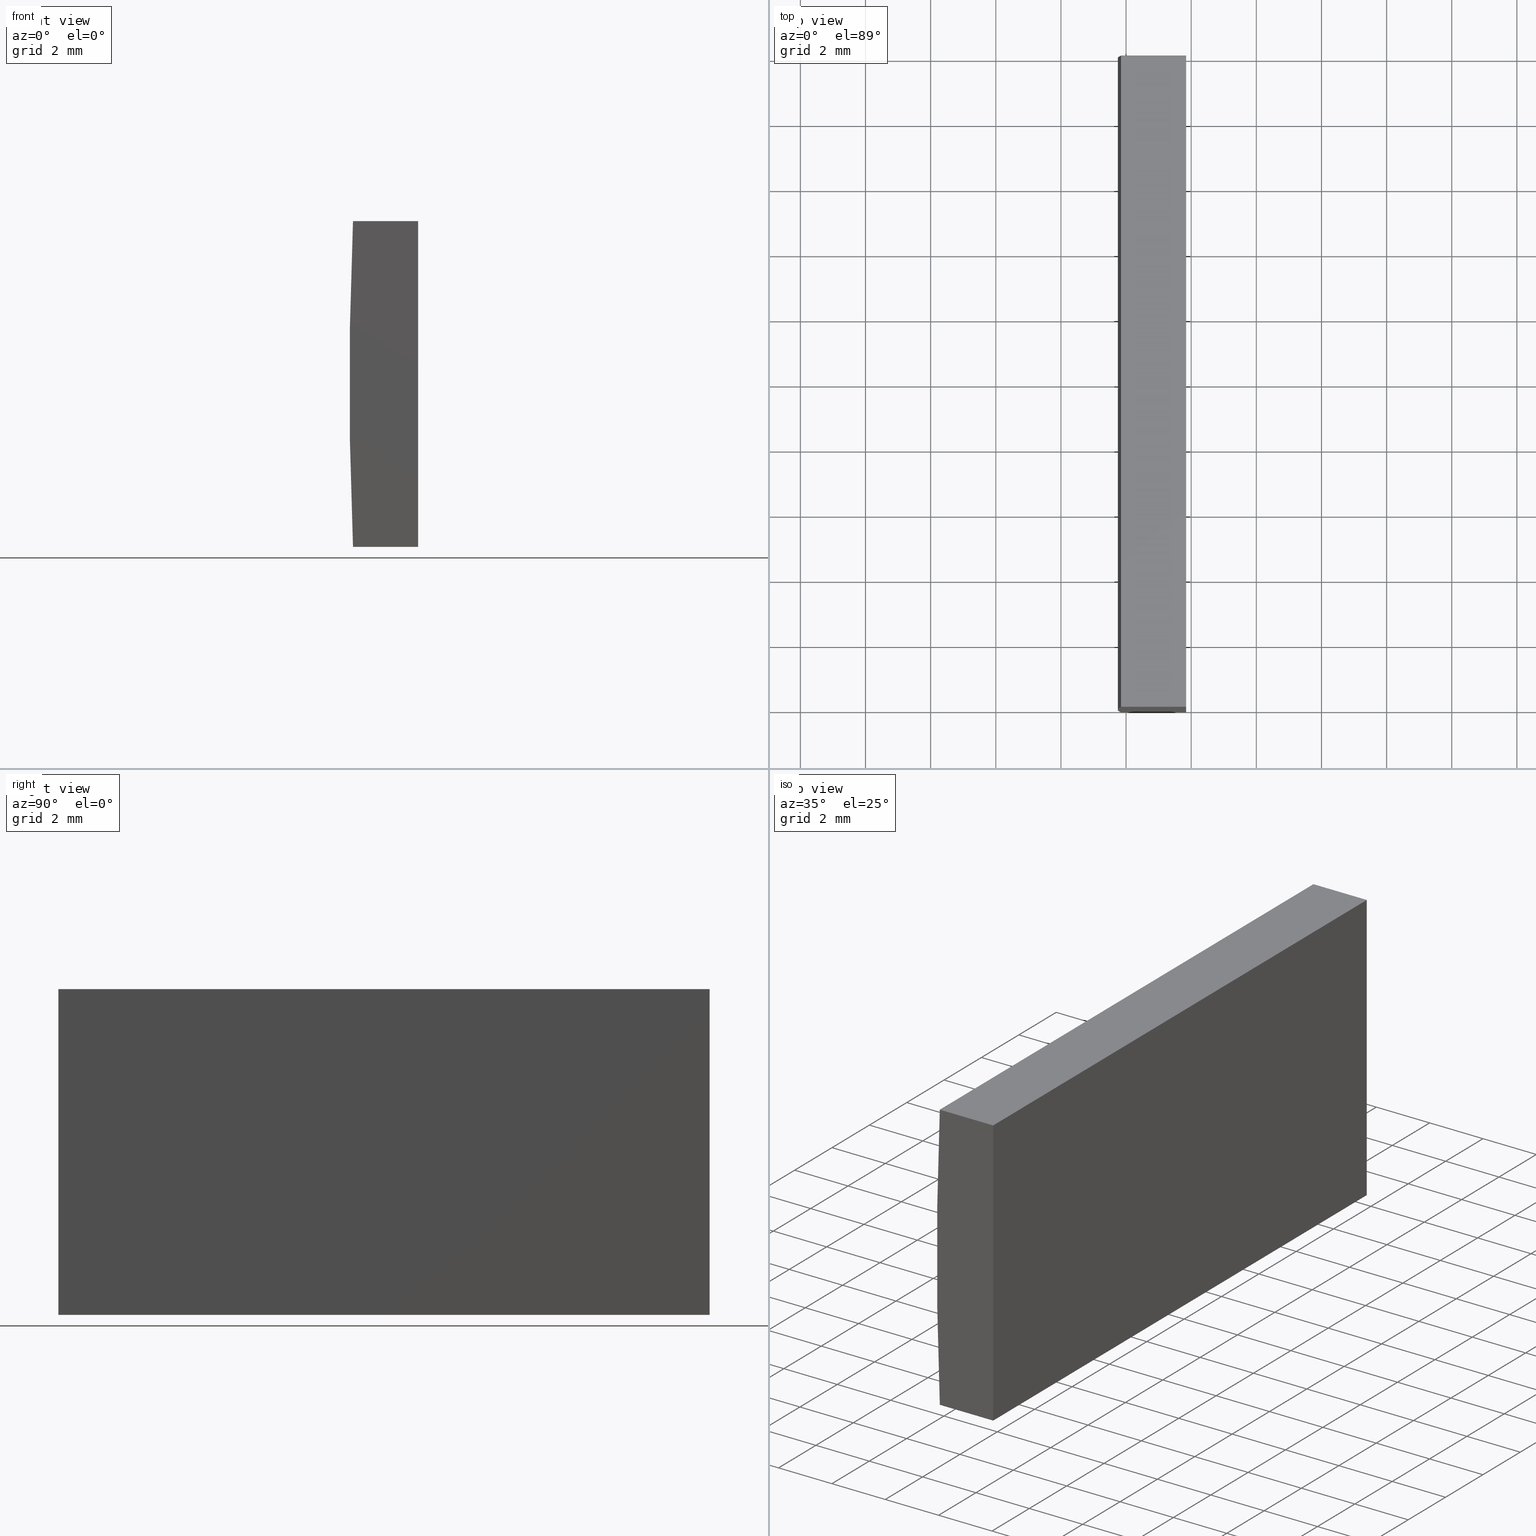
[diagram: canonical four-view strip — front | top / right | iso, engineering-drawing reading convention]
A machine part, canonical four-view strip (front | top / right | iso — engineering-drawing reading convention). The complete STEP part file that produces these views, byte-faithful:
ISO-10303-21;
HEADER;
FILE_DESCRIPTION (( 'STEP AP214' ),
    '1' );
FILE_NAME ('155288.STEP',
    '2019-06-26T02:52:55',
    ( 'user' ),
    ( '΢���й�' ),
    'SwSTEP 2.0',
    'SolidWorks 2016',
    '' );
FILE_SCHEMA (( 'AUTOMOTIVE_DESIGN' ));
ENDSEC;

DATA;
#1 = SURFACE_SIDE_STYLE ('',( #128 ) ) ;
#2 = EDGE_LOOP ( 'NONE', ( #24, #21, #84, #113 ) ) ;
#3 = PRESENTATION_STYLE_ASSIGNMENT (( #148 ) ) ;
#4 = PLANE ( 'NONE',  #101 ) ;
#5 = VECTOR ( 'NONE', #11, 1000.000000000000000 ) ;
#6 = VERTEX_POINT ( 'NONE', #81 ) ;
#7 = EDGE_LOOP ( 'NONE', ( #194, #62, #94, #151 ) ) ;
#8 = VECTOR ( 'NONE', #71, 1000.000000000000000 ) ;
#9 = DIRECTION ( 'NONE',  ( -1.000000000000000000, 0.0000000000000000000, -0.0000000000000000000 ) ) ;
#10 = AXIS2_PLACEMENT_3D ( 'NONE', #116, #134, #9 ) ;
#11 = DIRECTION ( 'NONE',  ( -1.000000000000000000, -0.0000000000000000000, 8.669750418240285800E-016 ) ) ;
#12 = LINE ( 'NONE', #72, #8 ) ;
#13 = VECTOR ( 'NONE', #162, 1000.000000000000000 ) ;
#14 = UNCERTAINTY_MEASURE_WITH_UNIT (LENGTH_MEASURE( 1.000000000000000100E-005 ), #52, 'distance_accuracy_value', 'NONE');
#15 = DIRECTION ( 'NONE',  ( -0.0000000000000000000, -1.000000000000000000, -0.0000000000000000000 ) ) ;
#16 = VERTEX_POINT ( 'NONE', #28 ) ;
#17 = PLANE ( 'NONE',  #105 ) ;
#18 =( NAMED_UNIT ( * ) PLANE_ANGLE_UNIT ( ) SI_UNIT ( $, .RADIAN. ) );
#19 = EDGE_LOOP ( 'NONE', ( #58, #125, #186, #82 ) ) ;
#20 = EDGE_CURVE ( 'NONE', #91, #159, #85, .T. ) ;
#21 = ORIENTED_EDGE ( 'NONE', *, *, #198, .F. ) ;
#22 = COLOUR_RGB ( '',1.000000000000000000, 1.000000000000000000, 1.000000000000000000 ) ;
#23 = PRODUCT_DEFINITION_SHAPE ( 'NONE', 'NONE',  #51 ) ;
#24 = ORIENTED_EDGE ( 'NONE', *, *, #20, .T. ) ;
#25 = DIRECTION ( 'NONE',  ( -0.0000000000000000000, -1.000000000000000000, -0.0000000000000000000 ) ) ;
#26 = LINE ( 'NONE', #46, #34 ) ;
#27 = AXIS2_PLACEMENT_3D ( 'NONE', #40, #190, #68 ) ;
#28 = CARTESIAN_POINT ( 'NONE',  ( -110.1556877235027200, 0.0000000000000000000, -5.000000000000000000 ) ) ;
#29 = CARTESIAN_POINT ( 'NONE',  ( 4.355204334851265500, 0.0000000000000000000, 4.286263797015675000E-017 ) ) ;
#30 = ORIENTED_EDGE ( 'NONE', *, *, #39, .F. ) ;
#31 = PRESENTATION_STYLE_ASSIGNMENT (( #170 ) ) ;
#32 = EDGE_LOOP ( 'NONE', ( #147, #30, #103, #203 ) ) ;
#33 = MANIFOLD_SOLID_BREP ( '͹̨-����1', #77 ) ;
#34 = VECTOR ( 'NONE', #44, 1000.000000000000000 ) ;
#35 = STYLED_ITEM ( 'NONE', ( #31 ), #118 ) ;
#36 = COLOUR_RGB ( '',1.000000000000000000, 1.000000000000000000, 1.000000000000000000 ) ;
#37 = EDGE_LOOP ( 'NONE', ( #156, #142, #107, #122 ) ) ;
#38 = CARTESIAN_POINT ( 'NONE',  ( -110.1556877235027200, 20.00000000000000000, -5.000000000000000000 ) ) ;
#39 = EDGE_CURVE ( 'NONE', #6, #45, #65, .T. ) ;
#40 = CARTESIAN_POINT ( 'NONE',  ( 4.355204334851265500, 0.0000000000000000000, 4.286263797015675000E-017 ) ) ;
#41 = CARTESIAN_POINT ( 'NONE',  ( -110.1556877235027200, 20.00000000000000000, 5.000000000000000000 ) ) ;
#42 = CIRCLE ( 'NONE', #27, 114.6199999999999900 ) ;
#43 = EDGE_CURVE ( 'NONE', #181, #16, #140, .T. ) ;
#44 = DIRECTION ( 'NONE',  ( -0.0000000000000000000, -0.0000000000000000000, -1.000000000000000000 ) ) ;
#45 = VERTEX_POINT ( 'NONE', #197 ) ;
#46 = CARTESIAN_POINT ( 'NONE',  ( -108.1547956651487400, 20.00000000000000000, -5.000000000000001800 ) ) ;
#47 = LINE ( 'NONE', #49, #75 ) ;
#48 = FACE_OUTER_BOUND ( 'NONE', #2, .T. ) ;
#49 = CARTESIAN_POINT ( 'NONE',  ( -108.1547956651487400, 0.0000000000000000000, -5.000000000000001800 ) ) ;
#50 = FACE_OUTER_BOUND ( 'NONE', #37, .T. ) ;
#51 = PRODUCT_DEFINITION ( 'δ֪', '', #145, #149 ) ;
#52 =( LENGTH_UNIT ( ) NAMED_UNIT ( * ) SI_UNIT ( .MILLI., .METRE. ) );
#53 = FACE_OUTER_BOUND ( 'NONE', #19, .T. ) ;
#54 = PRODUCT_CONTEXT ( 'NONE', #195, 'mechanical' ) ;
#55 = EDGE_CURVE ( 'NONE', #159, #45, #47, .T. ) ;
#56 = PLANE ( 'NONE',  #161 ) ;
#57 = DIRECTION ( 'NONE',  ( 1.000000000000000000, 0.0000000000000000000, -8.669750418240286800E-016 ) ) ;
#58 = ORIENTED_EDGE ( 'NONE', *, *, #60, .F. ) ;
#59 = AXIS2_PLACEMENT_3D ( 'NONE', #167, #174, #130 ) ;
#60 = EDGE_CURVE ( 'NONE', #16, #91, #42, .T. ) ;
#61 = DIRECTION ( 'NONE',  ( -0.0000000000000000000, -1.000000000000000000, -0.0000000000000000000 ) ) ;
#62 = ORIENTED_EDGE ( 'NONE', *, *, #43, .F. ) ;
#63 = DIRECTION ( 'NONE',  ( 0.0000000000000000000, 0.0000000000000000000, 1.000000000000000000 ) ) ;
#64 = DIRECTION ( 'NONE',  ( -0.0000000000000000000, -0.0000000000000000000, -1.000000000000000000 ) ) ;
#65 = LINE ( 'NONE', #175, #88 ) ;
#66 = EDGE_CURVE ( 'NONE', #6, #181, #119, .T. ) ;
#67 = DIRECTION ( 'NONE',  ( 1.000000000000000000, 0.0000000000000000000, 0.0000000000000000000 ) ) ;
#68 = DIRECTION ( 'NONE',  ( 0.0000000000000000000, 0.0000000000000000000, 1.000000000000000000 ) ) ;
#69 = DIRECTION ( 'NONE',  ( 0.0000000000000000000, 0.0000000000000000000, 1.000000000000000000 ) ) ;
#70 = SHAPE_DEFINITION_REPRESENTATION ( #23, #118 ) ;
#71 = DIRECTION ( 'NONE',  ( -1.000000000000000000, -0.0000000000000000000, 8.669750418240285800E-016 ) ) ;
#72 = CARTESIAN_POINT ( 'NONE',  ( -110.1556877235027200, 0.0000000000000000000, -5.000000000000000000 ) ) ;
#73 = FACE_OUTER_BOUND ( 'NONE', #32, .T. ) ;
#74 = ORIENTED_EDGE ( 'NONE', *, *, #112, .F. ) ;
#75 = VECTOR ( 'NONE', #64, 1000.000000000000000 ) ;
#76 = CARTESIAN_POINT ( 'NONE',  ( 0.0000000000000000000, 0.0000000000000000000, 0.0000000000000000000 ) ) ;
#77 = CLOSED_SHELL ( 'NONE', ( #184, #137, #146, #177, #154, #78 ) ) ;
#78 = ADVANCED_FACE ( 'NONE', ( #53 ), #56, .F. ) ;
#79 = FACE_OUTER_BOUND ( 'NONE', #7, .T. ) ;
#80 = DIRECTION ( 'NONE',  ( 0.0000000000000000000, 0.0000000000000000000, 1.000000000000000000 ) ) ;
#81 = CARTESIAN_POINT ( 'NONE',  ( -108.1547956651487400, 20.00000000000000000, -5.000000000000001800 ) ) ;
#82 = ORIENTED_EDGE ( 'NONE', *, *, #20, .F. ) ;
#83 = CARTESIAN_POINT ( 'NONE',  ( -110.1556877235027200, 20.00000000000000000, -5.000000000000000000 ) ) ;
#84 = ORIENTED_EDGE ( 'NONE', *, *, #139, .F. ) ;
#85 = LINE ( 'NONE', #150, #98 ) ;
#86 = CARTESIAN_POINT ( 'NONE',  ( 4.355204334851265500, 20.00000000000000000, 4.286263797015675000E-017 ) ) ;
#87 = VERTEX_POINT ( 'NONE', #144 ) ;
#88 = VECTOR ( 'NONE', #25, 1000.000000000000000 ) ;
#89 = PLANE ( 'NONE',  #59 ) ;
#90 = DIRECTION ( 'NONE',  ( 8.669750418240286800E-016, -0.0000000000000000000, 1.000000000000000000 ) ) ;
#91 = VERTEX_POINT ( 'NONE', #132 ) ;
#92 = FACE_OUTER_BOUND ( 'NONE', #196, .T. ) ;
#93 =( NAMED_UNIT ( * ) SI_UNIT ( $, .STERADIAN. ) SOLID_ANGLE_UNIT ( ) );
#94 = ORIENTED_EDGE ( 'NONE', *, *, #66, .F. ) ;
#95 = LINE ( 'NONE', #200, #13 ) ;
#96 = APPLICATION_PROTOCOL_DEFINITION ( 'draft international standard', 'automotive_design', 1998, #123 ) ;
#97 = DIRECTION ( 'NONE',  ( 1.000000000000000000, 0.0000000000000000000, 0.0000000000000000000 ) ) ;
#98 = VECTOR ( 'NONE', #97, 1000.000000000000000 ) ;
#99 = VECTOR ( 'NONE', #160, 1000.000000000000000 ) ;
#100 = DIRECTION ( 'NONE',  ( -1.000000000000000000, 0.0000000000000000000, 0.0000000000000000000 ) ) ;
#101 = AXIS2_PLACEMENT_3D ( 'NONE', #111, #100, #63 ) ;
#102 = FILL_AREA_STYLE ('',( #179 ) ) ;
#103 = ORIENTED_EDGE ( 'NONE', *, *, #110, .F. ) ;
#104 = UNCERTAINTY_MEASURE_WITH_UNIT (LENGTH_MEASURE( 1.000000000000000100E-005 ), #192, 'distance_accuracy_value', 'NONE');
#105 = AXIS2_PLACEMENT_3D ( 'NONE', #38, #90, #57 ) ;
#106 = CARTESIAN_POINT ( 'NONE',  ( 4.355204334851265500, 20.00000000000000000, 4.286263797015675000E-017 ) ) ;
#107 = ORIENTED_EDGE ( 'NONE', *, *, #110, .T. ) ;
#108 = LINE ( 'NONE', #131, #193 ) ;
#109 = VECTOR ( 'NONE', #15, 1000.000000000000000 ) ;
#110 = EDGE_CURVE ( 'NONE', #169, #6, #26, .T. ) ;
#111 = CARTESIAN_POINT ( 'NONE',  ( -108.1547956651487400, 20.00000000000000000, -5.000000000000001800 ) ) ;
#112 = EDGE_CURVE ( 'NONE', #87, #91, #114, .T. ) ;
#113 = ORIENTED_EDGE ( 'NONE', *, *, #112, .T. ) ;
#114 = LINE ( 'NONE', #41, #99 ) ;
#115 =( NAMED_UNIT ( * ) PLANE_ANGLE_UNIT ( ) SI_UNIT ( $, .RADIAN. ) );
#116 = CARTESIAN_POINT ( 'NONE',  ( -110.1556877235027200, 20.00000000000000000, 5.000000000000000000 ) ) ;
#117 = MECHANICAL_DESIGN_GEOMETRIC_PRESENTATION_REPRESENTATION (  '', ( #178 ), #129 ) ;
#118 = ADVANCED_BREP_SHAPE_REPRESENTATION ( '155288', ( #33, #168 ), #189 ) ;
#119 = LINE ( 'NONE', #163, #5 ) ;
#120 = PRODUCT_RELATED_PRODUCT_CATEGORY ( 'part', '', ( #121 ) ) ;
#121 = PRODUCT ( '155288', '155288', '', ( #54 ) ) ;
#122 = ORIENTED_EDGE ( 'NONE', *, *, #66, .T. ) ;
#123 = APPLICATION_CONTEXT ( 'automotive_design' ) ;
#124 = CARTESIAN_POINT ( 'NONE',  ( -108.1547956651487400, 20.00000000000000000, 5.000000000000000000 ) ) ;
#125 = ORIENTED_EDGE ( 'NONE', *, *, #180, .F. ) ;
#126 = SURFACE_SIDE_STYLE ('',( #152 ) ) ;
#127 =( NAMED_UNIT ( * ) SI_UNIT ( $, .STERADIAN. ) SOLID_ANGLE_UNIT ( ) );
#128 = SURFACE_STYLE_FILL_AREA ( #102 ) ;
#129 =( GEOMETRIC_REPRESENTATION_CONTEXT ( 3 ) GLOBAL_UNCERTAINTY_ASSIGNED_CONTEXT ( ( #104 ) ) GLOBAL_UNIT_ASSIGNED_CONTEXT ( ( #192, #18, #127 ) ) REPRESENTATION_CONTEXT ( 'NONE', 'WORKASPACE' ) );
#130 = DIRECTION ( 'NONE',  ( 0.0000000000000000000, -0.0000000000000000000, 1.000000000000000000 ) ) ;
#131 = CARTESIAN_POINT ( 'NONE',  ( -110.1556877235027200, 20.00000000000000000, 5.000000000000000000 ) ) ;
#132 = CARTESIAN_POINT ( 'NONE',  ( -110.1556877235027200, 0.0000000000000000000, 5.000000000000000000 ) ) ;
#133 = DIRECTION ( 'NONE',  ( 0.0000000000000000000, 1.000000000000000000, 0.0000000000000000000 ) ) ;
#134 = DIRECTION ( 'NONE',  ( 0.0000000000000000000, 0.0000000000000000000, -1.000000000000000000 ) ) ;
#135 = PRESENTATION_LAYER_ASSIGNMENT (  '', '', ( #35 ) ) ;
#136 = ORIENTED_EDGE ( 'NONE', *, *, #176, .F. ) ;
#137 = ADVANCED_FACE ( 'NONE', ( #48 ), #188, .F. ) ;
#138 = ORIENTED_EDGE ( 'NONE', *, *, #43, .T. ) ;
#139 = EDGE_CURVE ( 'NONE', #87, #169, #108, .T. ) ;
#140 = LINE ( 'NONE', #204, #109 ) ;
#141 =( GEOMETRIC_REPRESENTATION_CONTEXT ( 3 ) GLOBAL_UNCERTAINTY_ASSIGNED_CONTEXT ( ( #14 ) ) GLOBAL_UNIT_ASSIGNED_CONTEXT ( ( #52, #115, #93 ) ) REPRESENTATION_CONTEXT ( 'NONE', 'WORKASPACE' ) );
#142 = ORIENTED_EDGE ( 'NONE', *, *, #139, .T. ) ;
#143 = DIRECTION ( 'NONE',  ( 0.0000000000000000000, 0.0000000000000000000, -1.000000000000000000 ) ) ;
#144 = CARTESIAN_POINT ( 'NONE',  ( -110.1556877235027200, 20.00000000000000000, 5.000000000000000000 ) ) ;
#145 = PRODUCT_DEFINITION_FORMATION_WITH_SPECIFIED_SOURCE ( '�κ�', '', #121, .NOT_KNOWN. ) ;
#146 = ADVANCED_FACE ( 'NONE', ( #73 ), #4, .F. ) ;
#147 = ORIENTED_EDGE ( 'NONE', *, *, #55, .T. ) ;
#148 = SURFACE_STYLE_USAGE ( .BOTH. , #126 ) ;
#149 = PRODUCT_DEFINITION_CONTEXT ( 'detailed design', #123, 'design' ) ;
#150 = CARTESIAN_POINT ( 'NONE',  ( -110.1556877235027200, 0.0000000000000000000, 5.000000000000000000 ) ) ;
#151 = ORIENTED_EDGE ( 'NONE', *, *, #39, .T. ) ;
#152 = SURFACE_STYLE_FILL_AREA ( #165 ) ;
#153 =( NAMED_UNIT ( * ) SI_UNIT ( $, .STERADIAN. ) SOLID_ANGLE_UNIT ( ) );
#154 = ADVANCED_FACE ( 'NONE', ( #50 ), #89, .T. ) ;
#155 = FILL_AREA_STYLE_COLOUR ( '', #22 ) ;
#156 = ORIENTED_EDGE ( 'NONE', *, *, #176, .T. ) ;
#157 = AXIS2_PLACEMENT_3D ( 'NONE', #106, #199, #80 ) ;
#158 = CARTESIAN_POINT ( 'NONE',  ( -108.1547956651487400, 0.0000000000000000000, 5.000000000000000000 ) ) ;
#159 = VERTEX_POINT ( 'NONE', #158 ) ;
#160 = DIRECTION ( 'NONE',  ( -0.0000000000000000000, -1.000000000000000000, -0.0000000000000000000 ) ) ;
#161 = AXIS2_PLACEMENT_3D ( 'NONE', #29, #133, #164 ) ;
#162 = DIRECTION ( 'NONE',  ( -0.0000000000000000000, -1.000000000000000000, -0.0000000000000000000 ) ) ;
#163 = CARTESIAN_POINT ( 'NONE',  ( -110.1556877235027200, 20.00000000000000000, -5.000000000000000000 ) ) ;
#164 = DIRECTION ( 'NONE',  ( 0.0000000000000000000, -0.0000000000000000000, 1.000000000000000000 ) ) ;
#165 = FILL_AREA_STYLE ('',( #155 ) ) ;
#166 = ORIENTED_EDGE ( 'NONE', *, *, #60, .T. ) ;
#167 = CARTESIAN_POINT ( 'NONE',  ( 4.355204334851265500, 20.00000000000000000, 4.286263797015675000E-017 ) ) ;
#168 = AXIS2_PLACEMENT_3D ( 'NONE', #76, #69, #67 ) ;
#169 = VERTEX_POINT ( 'NONE', #124 ) ;
#170 = SURFACE_STYLE_USAGE ( .BOTH. , #1 ) ;
#171 = UNCERTAINTY_MEASURE_WITH_UNIT (LENGTH_MEASURE( 1.000000000000000100E-005 ), #187, 'distance_accuracy_value', 'NONE');
#172 = MECHANICAL_DESIGN_GEOMETRIC_PRESENTATION_REPRESENTATION (  '', ( #35 ), #141 ) ;
#173 = DIRECTION ( 'NONE',  ( 1.000000000000000000, 0.0000000000000000000, 0.0000000000000000000 ) ) ;
#174 = DIRECTION ( 'NONE',  ( 0.0000000000000000000, 1.000000000000000000, 0.0000000000000000000 ) ) ;
#175 = CARTESIAN_POINT ( 'NONE',  ( -108.1547956651487400, 20.00000000000000000, -5.000000000000001800 ) ) ;
#176 = EDGE_CURVE ( 'NONE', #181, #87, #182, .T. ) ;
#177 = ADVANCED_FACE ( 'NONE', ( #79 ), #17, .F. ) ;
#178 = STYLED_ITEM ( 'NONE', ( #3 ), #33 ) ;
#179 = FILL_AREA_STYLE_COLOUR ( '', #36 ) ;
#180 = EDGE_CURVE ( 'NONE', #45, #16, #12, .T. ) ;
#181 = VERTEX_POINT ( 'NONE', #83 ) ;
#182 = CIRCLE ( 'NONE', #157, 114.6199999999999900 ) ;
#183 = AXIS2_PLACEMENT_3D ( 'NONE', #86, #61, #143 ) ;
#184 = ADVANCED_FACE ( 'NONE', ( #92 ), #191, .T. ) ;
#185 =( NAMED_UNIT ( * ) PLANE_ANGLE_UNIT ( ) SI_UNIT ( $, .RADIAN. ) );
#186 = ORIENTED_EDGE ( 'NONE', *, *, #55, .F. ) ;
#187 =( LENGTH_UNIT ( ) NAMED_UNIT ( * ) SI_UNIT ( .MILLI., .METRE. ) );
#188 = PLANE ( 'NONE',  #10 ) ;
#189 =( GEOMETRIC_REPRESENTATION_CONTEXT ( 3 ) GLOBAL_UNCERTAINTY_ASSIGNED_CONTEXT ( ( #171 ) ) GLOBAL_UNIT_ASSIGNED_CONTEXT ( ( #187, #185, #153 ) ) REPRESENTATION_CONTEXT ( 'NONE', 'WORKASPACE' ) );
#190 = DIRECTION ( 'NONE',  ( 0.0000000000000000000, 1.000000000000000000, 0.0000000000000000000 ) ) ;
#191 = CYLINDRICAL_SURFACE ( 'NONE', #183, 114.6199999999999900 ) ;
#192 =( LENGTH_UNIT ( ) NAMED_UNIT ( * ) SI_UNIT ( .MILLI., .METRE. ) );
#193 = VECTOR ( 'NONE', #173, 1000.000000000000000 ) ;
#194 = ORIENTED_EDGE ( 'NONE', *, *, #180, .T. ) ;
#195 = APPLICATION_CONTEXT ( 'automotive_design' ) ;
#196 = EDGE_LOOP ( 'NONE', ( #166, #74, #136, #138 ) ) ;
#197 = CARTESIAN_POINT ( 'NONE',  ( -108.1547956651487400, 0.0000000000000000000, -5.000000000000001800 ) ) ;
#198 = EDGE_CURVE ( 'NONE', #169, #159, #95, .T. ) ;
#199 = DIRECTION ( 'NONE',  ( 0.0000000000000000000, 1.000000000000000000, 0.0000000000000000000 ) ) ;
#200 = CARTESIAN_POINT ( 'NONE',  ( -108.1547956651487400, 20.00000000000000000, 5.000000000000000000 ) ) ;
#201 = PRESENTATION_LAYER_ASSIGNMENT (  '', '', ( #178 ) ) ;
#202 = APPLICATION_PROTOCOL_DEFINITION ( 'draft international standard', 'automotive_design', 1998, #195 ) ;
#203 = ORIENTED_EDGE ( 'NONE', *, *, #198, .T. ) ;
#204 = CARTESIAN_POINT ( 'NONE',  ( -110.1556877235027200, 20.00000000000000000, -5.000000000000000000 ) ) ;
ENDSEC;
END-ISO-10303-21;
